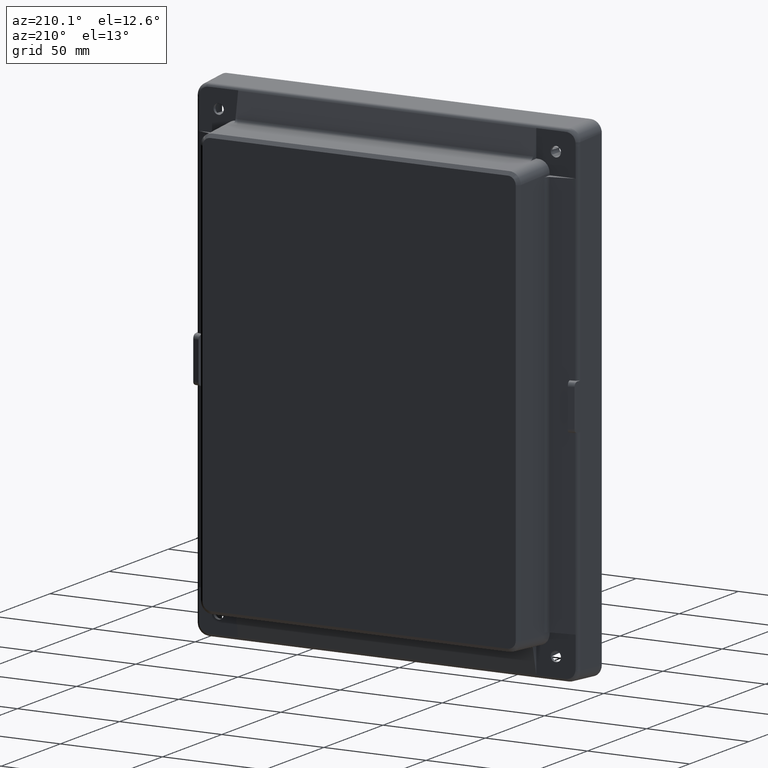
[diagram: clean part render]
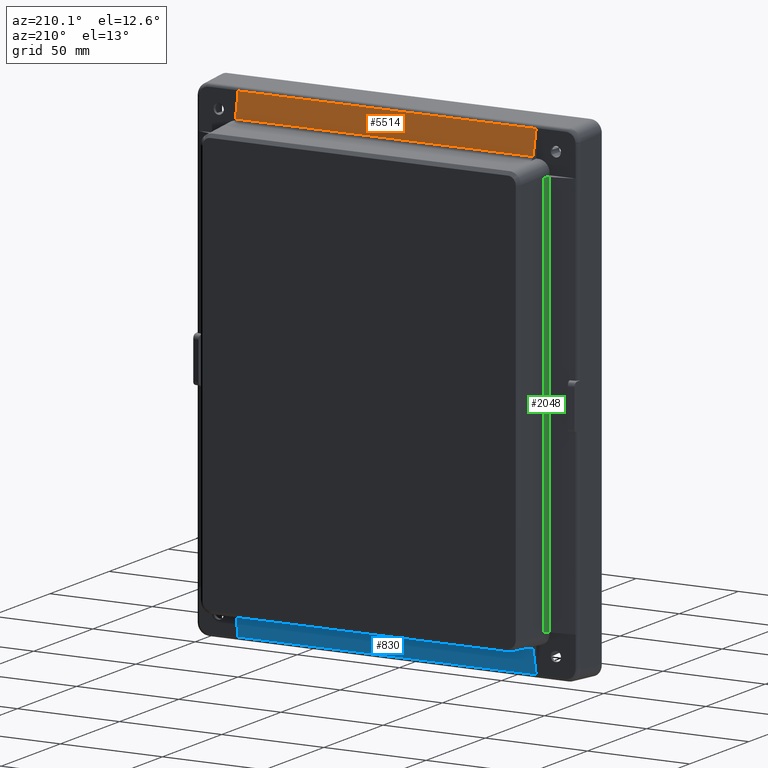
[diagram: same view with three faces highlighted in distinct colors, each labeled with its STEP entity id]
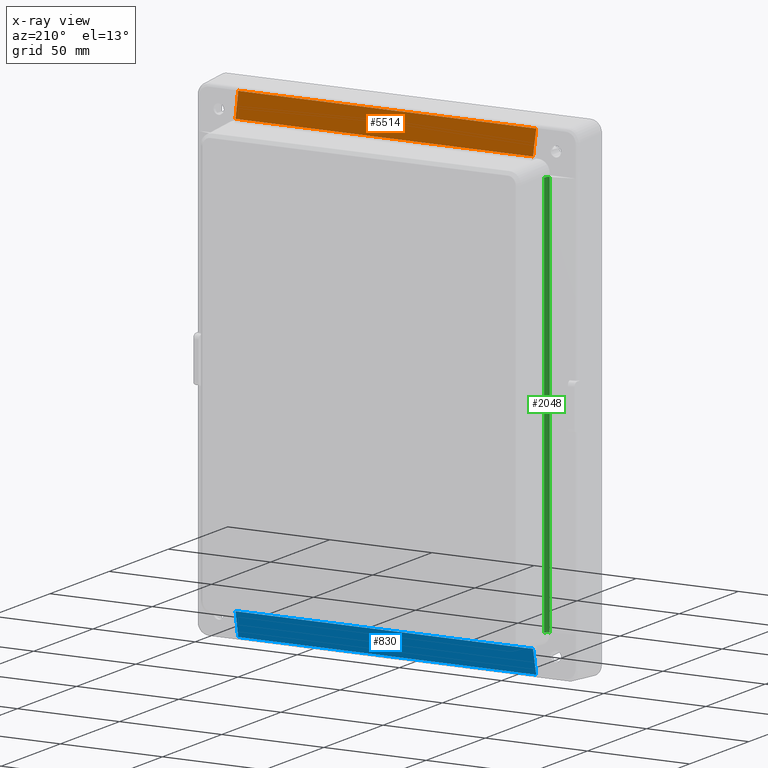
[diagram: x-ray of the same camera — body ghosted, the three highlighted faces saturated]
A machine part, auxiliary view with three faces highlighted in distinct colors.
The next image is the same camera in x-ray (body ghosted, the three faces saturated) — at least one of them is partly hidden behind the body in this view.
Their STEP definitions:

[orange] entity #5514 — the highlighted planar face has unit normal (0, 0.9781, 0.2079).
#159 = EDGE_CURVE ( 'NONE', #6005, #673, #1722, .T. ) ;
#203 = CARTESIAN_POINT ( 'NONE',  ( -72.95098186639337700, 9.953501870640233000, 120.1946787065899700 ) ) ;
#206 = ORIENTED_EDGE ( 'NONE', *, *, #2683, .T. ) ;
#277 = CARTESIAN_POINT ( 'NONE',  ( 72.93182312138239400, 10.31907250296160500, 118.4748041026297500 ) ) ;
#513 = PLANE ( 'NONE',  #3469 ) ;
#673 = VERTEX_POINT ( 'NONE', #6108 ) ;
#959 = VECTOR ( 'NONE', #4070, 1000.000000000000000 ) ;
#998 = VERTEX_POINT ( 'NONE', #3005 ) ;
#1112 = LINE ( 'NONE', #3087, #959 ) ;
#1164 = DIRECTION ( 'NONE',  ( -0.01089554322459414100, -0.2078993495555324100, 0.9780895396599574900 ) ) ;
#1226 = DIRECTION ( 'NONE',  ( -0.01089554322459412000, 0.2078993495555324100, -0.9780895396599574900 ) ) ;
#1303 = EDGE_CURVE ( 'NONE', #673, #998, #4456, .T. ) ;
#1611 = CARTESIAN_POINT ( 'NONE',  ( 72.92878827785712300, 10.37698076709314800, 118.2023671396088400 ) ) ;
#1722 = LINE ( 'NONE', #2997, #1951 ) ;
#1951 = VECTOR ( 'NONE', #3473, 1000.000000000000000 ) ;
#2450 = DIRECTION ( 'NONE',  ( 0.0000000000000000000, -0.2079116908177565700, 0.9781476007338061300 ) ) ;
#2634 = VECTOR ( 'NONE', #1164, 1000.000000000000100 ) ;
#2683 = EDGE_CURVE ( 'NONE', #5836, #6005, #2729, .T. ) ;
#2729 = LINE ( 'NONE', #1611, #3416 ) ;
#2810 = ORIENTED_EDGE ( 'NONE', *, *, #3755, .T. ) ;
#2835 = ORIENTED_EDGE ( 'NONE', *, *, #159, .T. ) ;
#2997 = CARTESIAN_POINT ( 'NONE',  ( -72.78520096071274300, 12.79771748918624000, 106.8136962697293500 ) ) ;
#3005 = CARTESIAN_POINT ( 'NONE',  ( -72.93182312138230800, 10.31907250296160500, 118.4748041026297500 ) ) ;
#3087 = CARTESIAN_POINT ( 'NONE',  ( 87.96626240049907600, 10.31907250296160500, 118.4748041026297500 ) ) ;
#3416 = VECTOR ( 'NONE', #1226, 1000.000000000000000 ) ;
#3469 = AXIS2_PLACEMENT_3D ( 'NONE', #5387, #4368, #2450 ) ;
#3473 = DIRECTION ( 'NONE',  ( -1.000000000000000000, 0.0000000000000000000, -0.0000000000000000000 ) ) ;
#3755 = EDGE_CURVE ( 'NONE', #998, #5836, #1112, .T. ) ;
#3904 = CARTESIAN_POINT ( 'NONE',  ( 72.80192284202331600, 12.79771748918624000, 106.8136962697293500 ) ) ;
#4070 = DIRECTION ( 'NONE',  ( 1.000000000000000000, -0.0000000000000000000, -0.0000000000000000000 ) ) ;
#4368 = DIRECTION ( 'NONE',  ( 0.0000000000000000000, 0.9781476007338062400, 0.2079116908177565900 ) ) ;
#4456 = LINE ( 'NONE', #203, #2634 ) ;
#4663 = ORIENTED_EDGE ( 'NONE', *, *, #1303, .T. ) ;
#5387 = CARTESIAN_POINT ( 'NONE',  ( -93.47592220716968800, 9.999999999999998200, 119.9759222071695900 ) ) ;
#5514 = ADVANCED_FACE ( 'NONE', ( #5771 ), #513, .T. ) ;
#5697 = EDGE_LOOP ( 'NONE', ( #206, #2835, #4663, #2810 ) ) ;
#5771 = FACE_OUTER_BOUND ( 'NONE', #5697, .T. ) ;
#5836 = VERTEX_POINT ( 'NONE', #277 ) ;
#6005 = VERTEX_POINT ( 'NONE', #3904 ) ;
#6108 = CARTESIAN_POINT ( 'NONE',  ( -72.80192284202323100, 12.79771748918624000, 106.8136962697293500 ) ) ;

[blue] entity #830 — the highlighted planar face has unit normal (0, 0.9781, -0.2079).
#38 = CARTESIAN_POINT ( 'NONE',  ( -72.93182312138233700, 10.31907250296160500, -118.4748041026297300 ) ) ;
#355 = DIRECTION ( 'NONE',  ( 0.01089554322459413700, 0.2078993495555324100, 0.9780895396599574900 ) ) ;
#398 = VERTEX_POINT ( 'NONE', #5335 ) ;
#519 = EDGE_CURVE ( 'NONE', #2431, #398, #1184, .T. ) ;
#686 = EDGE_LOOP ( 'NONE', ( #2675, #4375, #762, #2233 ) ) ;
#762 = ORIENTED_EDGE ( 'NONE', *, *, #519, .T. ) ;
#830 = ADVANCED_FACE ( 'NONE', ( #5003 ), #2290, .T. ) ;
#1140 = LINE ( 'NONE', #3850, #2593 ) ;
#1184 = LINE ( 'NONE', #1385, #2566 ) ;
#1385 = CARTESIAN_POINT ( 'NONE',  ( 72.95098186639344800, 9.953501870640233000, -120.1946787065899500 ) ) ;
#1606 = DIRECTION ( 'NONE',  ( 1.000000000000000000, -0.0000000000000000000, -0.0000000000000000000 ) ) ;
#1796 = DIRECTION ( 'NONE',  ( 0.0000000000000000000, 0.2079116908177565700, 0.9781476007338061300 ) ) ;
#1890 = CARTESIAN_POINT ( 'NONE',  ( -72.92878827785706600, 10.37698076709314800, -118.2023671396088200 ) ) ;
#2233 = ORIENTED_EDGE ( 'NONE', *, *, #5159, .T. ) ;
#2270 = LINE ( 'NONE', #4495, #2654 ) ;
#2290 = PLANE ( 'NONE',  #4915 ) ;
#2370 = CARTESIAN_POINT ( 'NONE',  ( 72.80192284202331600, 12.79771748918623700, -106.8136962697293500 ) ) ;
#2431 = VERTEX_POINT ( 'NONE', #2370 ) ;
#2566 = VECTOR ( 'NONE', #4964, 1000.000000000000000 ) ;
#2593 = VECTOR ( 'NONE', #4351, 1000.000000000000000 ) ;
#2654 = VECTOR ( 'NONE', #1606, 1000.000000000000000 ) ;
#2675 = ORIENTED_EDGE ( 'NONE', *, *, #4424, .T. ) ;
#3289 = CARTESIAN_POINT ( 'NONE',  ( 93.47592220716968800, 9.999999999999998200, -119.9759222071695700 ) ) ;
#3300 = VERTEX_POINT ( 'NONE', #38 ) ;
#3503 = VECTOR ( 'NONE', #355, 1000.000000000000000 ) ;
#3850 = CARTESIAN_POINT ( 'NONE',  ( -87.96626240049913300, 10.31907250296160500, -118.4748041026297300 ) ) ;
#4351 = DIRECTION ( 'NONE',  ( -1.000000000000000000, -0.0000000000000000000, -0.0000000000000000000 ) ) ;
#4375 = ORIENTED_EDGE ( 'NONE', *, *, #6117, .T. ) ;
#4424 = EDGE_CURVE ( 'NONE', #3300, #4762, #5630, .T. ) ;
#4495 = CARTESIAN_POINT ( 'NONE',  ( 72.78520096071281400, 12.79771748918623700, -106.8136962697293500 ) ) ;
#4762 = VERTEX_POINT ( 'NONE', #5527 ) ;
#4915 = AXIS2_PLACEMENT_3D ( 'NONE', #3289, #6157, #1796 ) ;
#4964 = DIRECTION ( 'NONE',  ( 0.01089554322459413700, -0.2078993495555324100, -0.9780895396599574900 ) ) ;
#5003 = FACE_OUTER_BOUND ( 'NONE', #686, .T. ) ;
#5159 = EDGE_CURVE ( 'NONE', #398, #3300, #1140, .T. ) ;
#5335 = CARTESIAN_POINT ( 'NONE',  ( 72.93182312138240800, 10.31907250296160500, -118.4748041026297300 ) ) ;
#5527 = CARTESIAN_POINT ( 'NONE',  ( -72.80192284202325900, 12.79771748918623700, -106.8136962697293500 ) ) ;
#5630 = LINE ( 'NONE', #1890, #3503 ) ;
#6117 = EDGE_CURVE ( 'NONE', #4762, #2431, #2270, .T. ) ;
#6157 = DIRECTION ( 'NONE',  ( 0.0000000000000000000, 0.9781476007338062400, -0.2079116908177565900 ) ) ;

[green] entity #2048 — the highlighted cylindrical surface (edge-blend (fillet) strip) has radius 2 mm, axis along (0, 0, 1).
#125 = EDGE_CURVE ( 'NONE', #1326, #5589, #604, .T. ) ;
#245 = VERTEX_POINT ( 'NONE', #4651 ) ;
#463 = CARTESIAN_POINT ( 'NONE',  ( -80.81932882290107000, 12.69024197221564700, 98.80755539519498100 ) ) ;
#604 =( BOUNDED_CURVE ( )  B_SPLINE_CURVE ( 3, ( #2958, #5802, #2406, #463 ),
 .UNSPECIFIED., .F., .T. ) 
 B_SPLINE_CURVE_WITH_KNOTS ( ( 4, 4 ),
 ( 4.764748857944519900, 6.073745796940272600 ),
 .UNSPECIFIED. ) 
 CURVE ( )  GEOMETRIC_REPRESENTATION_ITEM ( )  RATIONAL_B_SPLINE_CURVE ( ( 1.000000000000000000, 0.8622355601941557000, 0.8622355601941557000, 1.000000000000000000 ) ) 
 REPRESENTATION_ITEM ( '' )  );
#623 = VECTOR ( 'NONE', #999, 1000.000000000000000 ) ;
#862 = CARTESIAN_POINT ( 'NONE',  ( -79.28716058657140300, 13.60178628403151400, -98.75978338209465300 ) ) ;
#984 = DIRECTION ( 'NONE',  ( 1.323973826724657500E-016, 2.814193243496909000E-017, 1.000000000000000000 ) ) ;
#999 = DIRECTION ( 'NONE',  ( -1.323973826724657700E-016, -2.814193243496909600E-017, -1.000000000000000000 ) ) ;
#1128 = CARTESIAN_POINT ( 'NONE',  ( -80.81932882290107000, 12.69024197221564700, 98.80755539519498100 ) ) ;
#1252 = AXIS2_PLACEMENT_3D ( 'NONE', #3286, #4731, #3825 ) ;
#1326 = VERTEX_POINT ( 'NONE', #3151 ) ;
#1886 = FACE_OUTER_BOUND ( 'NONE', #3519, .T. ) ;
#2048 = ADVANCED_FACE ( 'NONE', ( #1886 ), #5105, .F. ) ;
#2061 = EDGE_CURVE ( 'NONE', #2404, #245, #2737, .T. ) ;
#2404 = VERTEX_POINT ( 'NONE', #3091 ) ;
#2406 = CARTESIAN_POINT ( 'NONE',  ( -79.89853090534194300, 12.88596361156492700, 98.79729805871907900 ) ) ;
#2635 = LINE ( 'NONE', #3299, #623 ) ;
#2644 = ORIENTED_EDGE ( 'NONE', *, *, #5196, .F. ) ;
#2661 = LINE ( 'NONE', #5834, #5551 ) ;
#2737 =( BOUNDED_CURVE ( )  B_SPLINE_CURVE ( 3, ( #4831, #6215, #862, #4281 ),
 .UNSPECIFIED., .F., .T. ) 
 B_SPLINE_CURVE_WITH_KNOTS ( ( 4, 4 ),
 ( 3.351032163829111200, 4.660029102824863000 ),
 .UNSPECIFIED. ) 
 CURVE ( )  GEOMETRIC_REPRESENTATION_ITEM ( )  RATIONAL_B_SPLINE_CURVE ( ( 1.000000000000000000, 0.8622355601941557000, 0.8622355601941557000, 1.000000000000000000 ) ) 
 REPRESENTATION_ITEM ( '' )  );
#2958 = CARTESIAN_POINT ( 'NONE',  ( -79.23789313502743400, 14.54186526119737100, 98.71051593055065600 ) ) ;
#3091 = CARTESIAN_POINT ( 'NONE',  ( -80.81932882290109900, 12.69024197221564000, -98.80755539519501000 ) ) ;
#3151 = CARTESIAN_POINT ( 'NONE',  ( -79.23789313502743400, 14.54186526119737100, 98.71051593055065600 ) ) ;
#3286 = CARTESIAN_POINT ( 'NONE',  ( -81.23515220453661800, 14.64653717368324900, -119.9759222071695700 ) ) ;
#3299 = CARTESIAN_POINT ( 'NONE',  ( -80.81932882290109900, 12.69024197221564000, -98.79083351388450800 ) ) ;
#3519 = EDGE_LOOP ( 'NONE', ( #5098, #2644, #5271, #3815 ) ) ;
#3815 = ORIENTED_EDGE ( 'NONE', *, *, #4006, .F. ) ;
#3825 = DIRECTION ( 'NONE',  ( 1.000000000000000000, 0.0000000000000000000, 0.0000000000000000000 ) ) ;
#4006 = EDGE_CURVE ( 'NONE', #5589, #2404, #2635, .T. ) ;
#4281 = CARTESIAN_POINT ( 'NONE',  ( -79.23789313502746300, 14.54186526119736400, -98.71051593055071300 ) ) ;
#4651 = CARTESIAN_POINT ( 'NONE',  ( -79.23789313502746300, 14.54186526119736400, -98.71051593055071300 ) ) ;
#4731 = DIRECTION ( 'NONE',  ( 1.323973826724657700E-016, 2.814193243496909000E-017, 1.000000000000000000 ) ) ;
#4831 = CARTESIAN_POINT ( 'NONE',  ( -80.81932882290109900, 12.69024197221564000, -98.80755539519501000 ) ) ;
#5098 = ORIENTED_EDGE ( 'NONE', *, *, #125, .F. ) ;
#5105 = CYLINDRICAL_SURFACE ( 'NONE', #1252, 2.000000000000001800 ) ;
#5196 = EDGE_CURVE ( 'NONE', #245, #1326, #2661, .T. ) ;
#5271 = ORIENTED_EDGE ( 'NONE', *, *, #2061, .F. ) ;
#5551 = VECTOR ( 'NONE', #984, 1000.000000000000000 ) ;
#5589 = VERTEX_POINT ( 'NONE', #1128 ) ;
#5802 = CARTESIAN_POINT ( 'NONE',  ( -79.28716058657138900, 13.60178628403152400, 98.75978338209465300 ) ) ;
#5834 = CARTESIAN_POINT ( 'NONE',  ( -79.23789313502744800, 14.54186526119736900, 98.79083351388445100 ) ) ;
#6215 = CARTESIAN_POINT ( 'NONE',  ( -79.89853090534195700, 12.88596361156492000, -98.79729805871907900 ) ) ;